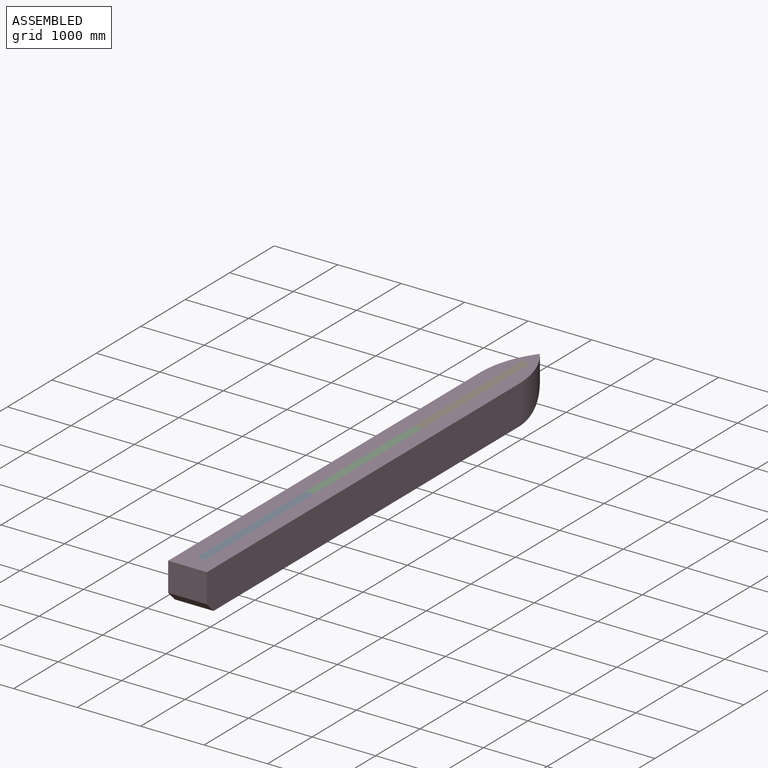
[diagram: assembled view]
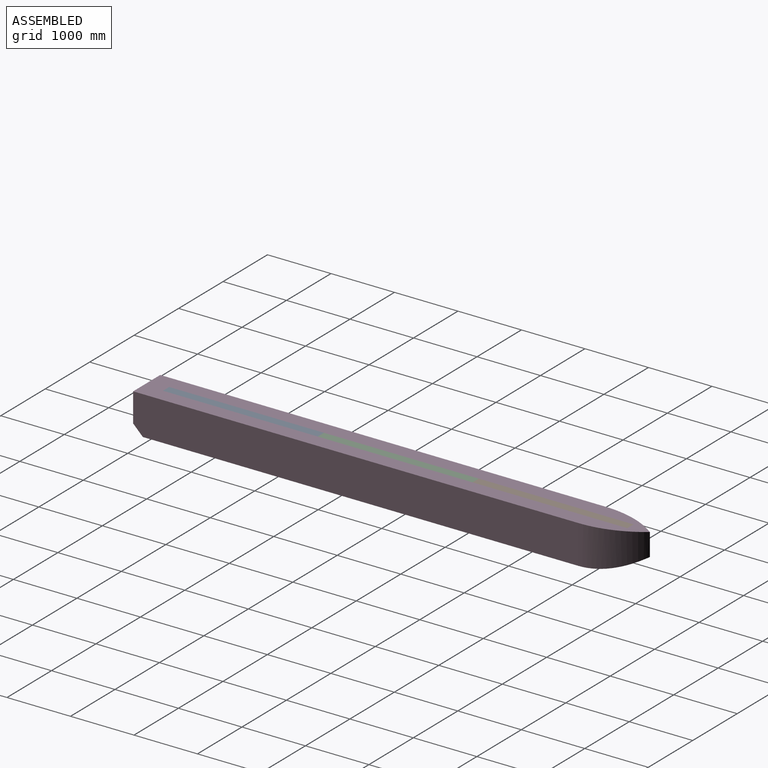
[diagram: assembled view, second angle]
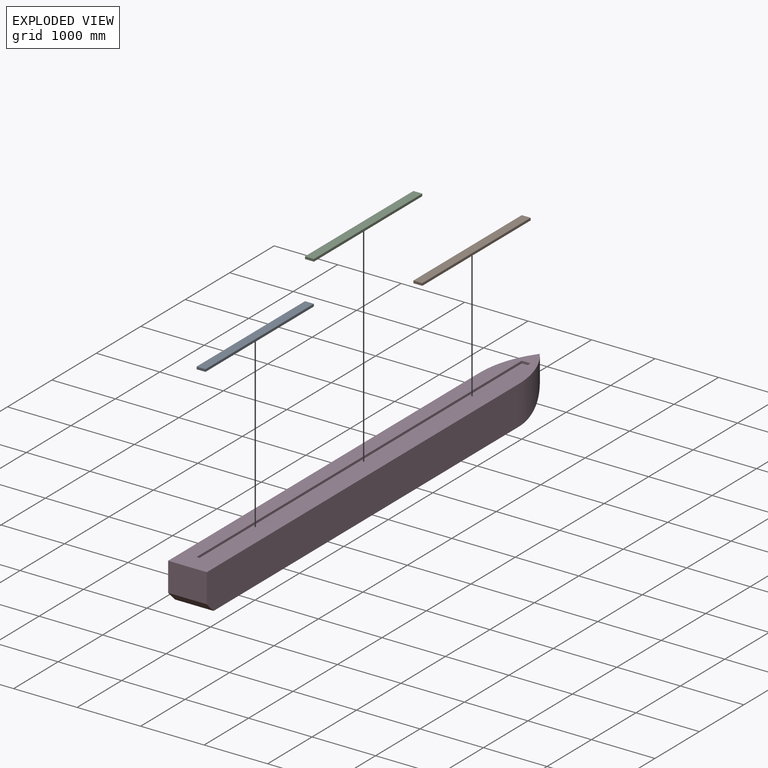
[diagram: exploded view]
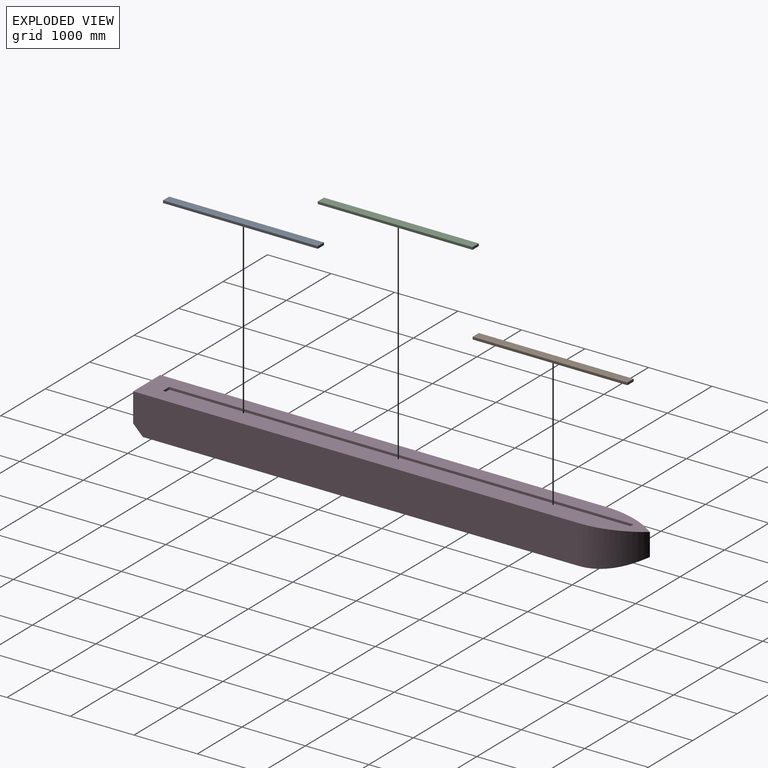
[diagram: exploded view, second angle]
ASSEMBLY  parts=4 mates=3
PART A: 6 faces, bbox 139.7x2438.4x38.1 mm
  f0: plane 2438.4x38.1mm, normal (-1,0,0), area 92903mm2, adj f1,f3,f4,f5
  f1: plane 139.7x38.1mm, normal (0,-1,0), area 5322.6mm2, adj f0,f2,f4,f5
  f2: plane 2438.4x38.1mm, normal (1,0,0), area 92903mm2, adj f1,f3,f4,f5
  f3: plane 139.7x38.1mm, normal (0,1,0), area 5322.6mm2, adj f0,f2,f4,f5
  f4: plane 2438.4x139.7mm, normal (0,0,1), area 340644.5mm2, adj f0,f1,f2,f3
  f5: plane 2438.4x139.7mm, normal (0,0,-1), area 340644.5mm2, adj f0,f1,f2,f3
PART B: same geometry as A
PART C: same geometry as A
PART D: 14 faces, bbox 609.6x7924.8x609.6 mm
  f0: plane 7924.8x609.6mm, normal (0,0,1), area 3631350.2mm2, adj f1,f3,f4,f5,f6,f9,f11,f12
  f1: plane 609.6x457.2mm, normal (0,-1,0), area 278709.1mm2, adj f0,f3,f6,f8
  f2: plane 6858x609.6mm, normal (0,0,-1), area 4180636.8mm2, adj f3,f6,f7,f8
  f3: plane 7010.4x609.6mm, normal (1,0,0), area 4261927mm2, adj f0,f1,f2,f4,f8
  f4: cylinder r=1524mm len=914.4mm, axis (0,0,1), area 512514mm2, adj f0,f3,f5,f7
  f5: cylinder r=1524mm len=914.4mm, axis (0,0,1), area 512514.4mm2, adj f0,f4,f6,f7
  f6: plane 7010.4x609.6mm, normal (-1,0,0), area 4261927mm2, adj f0,f1,f2,f5,f8
  f7: cylinder r=1772.92mm len=914.4mm, axis (1,0,0), area 391135.5mm2, adj f2,f4,f5
  f8: plane 609.6x152.4mm, normal (0,-0.71,-0.71), area 131384.7mm2, adj f1,f2,f3,f6
  f9: plane 7315.2x38.1mm, normal (1,0,0), area 278709.1mm2, adj f0,f10,f12,f13
  f10: plane 7315.2x139.7mm, normal (0,0,1), area 1021933.4mm2, adj f9,f11,f12,f13
  f11: plane 7315.2x38.1mm, normal (-1,0,0), area 278709.1mm2, adj f0,f10,f12,f13
  f12: plane 139.7x38.1mm, normal (0,-1,0), area 5322.6mm2, adj f0,f9,f10,f11
  f13: plane 139.7x38.1mm, normal (0,1,0), area 5322.6mm2, adj f0,f9,f10,f11
PLACE A t=(16.1,-2335.53,2241.36)mm
PLACE B t=(16.1,2541.27,2241.36)mm
PLACE C t=(16.1,102.87,2241.36)mm
PLACE D t=(-218.85,-2640.33,1669.86)mm fixed
MATE planar D.f10 <-> A.f5  axis (0,0,1) through (85.95,1322.07,2241.36)mm
MATE planar D.f9 <-> A.f0  axis (1,0,0) through (16.1,1322.07,2260.41)mm
MATE planar D.f13 <-> A.f1  axis (0,1,0) through (85.95,-2335.53,2260.41)mm
